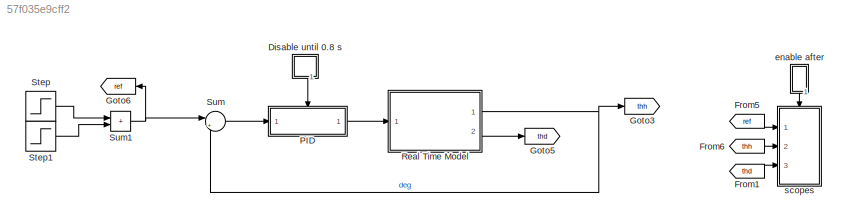
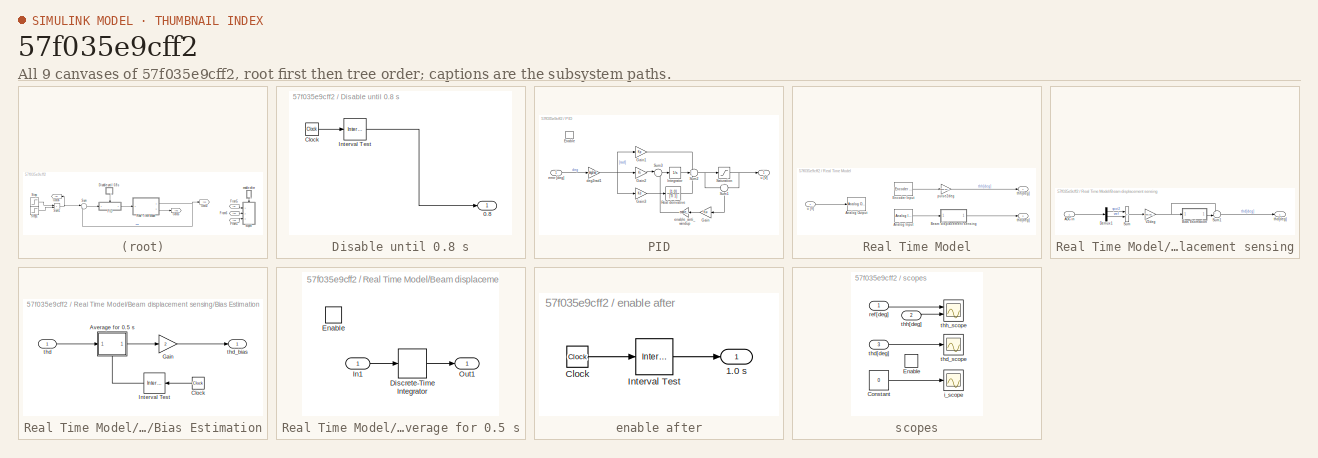
[diagram: thumbnail index - all 9 canvases of the model, root first then tree order]
MODEL slx_57f035e9cff2
KIND model
CONFIG AbsTol = auto
CONFIG EnableMultiTasking = off
CONFIG FixedStep = 0.001
CONFIG MaxStep = auto
CONFIG MinStep = auto
CONFIG RelTol = 1e-3
CONFIG SampleTimeConstraint = Unconstrained
CONFIG SolverName = ode3
CONFIG StartTime = 0.0
CONFIG StopTime = 5
BLOCK [SubSystem] Disable until 0.8 s
  NameLocation = left
  Ports = [0, 1]
  RequestExecContextInheritance = off
BLOCK [Outport] Disable until 0.8 s/0.8
BLOCK [Clock] Disable until 0.8 s/Clock
BLOCK [Reference] Disable until 0.8 s/Interval Test  REF=simulink/Logic and Bit
Operations/Interval Test
  Ports = [1, 1]
  SourceBlock = simulink/Logic and Bit\nOperations/Interval Test
  SourceProductBaseCode = SL
  SourceType = Interval Test
BLOCK [From] From1
  GotoTag = thd
BLOCK [From] From5
  GotoTag = ref
BLOCK [From] From6
  GotoTag = thh
BLOCK [Goto] Goto3
  GotoTag = thh
BLOCK [Goto] Goto5
  GotoTag = thd
BLOCK [Goto] Goto6
  GotoTag = ref
  NameLocation = top
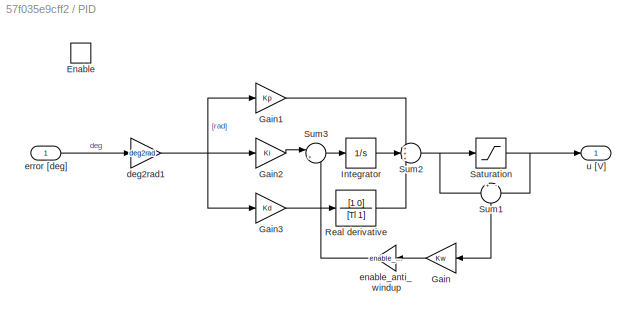
BLOCK [SubSystem] PID
  Ports = [1, 1, 1]
  RequestExecContextInheritance = off
BLOCK [EnablePort] PID/Enable
  Ports = []
BLOCK [Gain] PID/Gain
  Gain = Kw
  NameLocation = top
BLOCK [Gain] PID/Gain1
  Gain = Kp
BLOCK [Gain] PID/Gain2
  Gain = Ki
BLOCK [Gain] PID/Gain3
  Gain = Kd
BLOCK [Integrator] PID/Integrator
  Ports = [1, 1]
BLOCK [TransferFcn] PID/Real derivative
  Denominator = [Tl 1]
  Numerator = [1 0]
BLOCK [Saturate] PID/Saturation
  LinearizeAsGain = off
  LowerLimit = -drv.outmax
  UpperLimit = drv.outmax
BLOCK [Sum] PID/Sum1
  Inputs = +|-
  NameLocation = left
  Ports = [2, 1]
BLOCK [Sum] PID/Sum2
  Inputs = +++
  Ports = [3, 1]
BLOCK [Sum] PID/Sum3
  Inputs = |+-
  Ports = [2, 1]
BLOCK [Gain] PID/deg2rad1
  Gain = deg2rad
BLOCK [Gain] PID/enable_anti_windup
  Gain = enable_anti_windup
BLOCK [Inport] PID/error [deg]
BLOCK [Outport] PID/u [V]
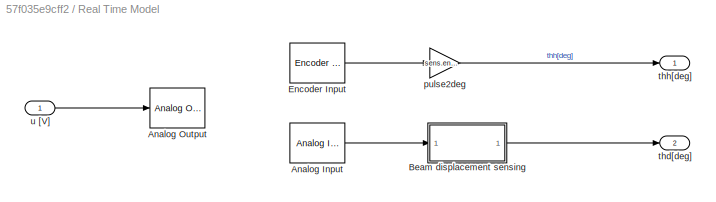
BLOCK [SubSystem] Real Time Model
  Ports = [1, 2]
  RequestExecContextInheritance = off
BLOCK [Reference] Real Time Model/Analog Input  REF=sldrtlib/Analog Input
  AttributesFormatString = National Instruments\nPCI-6221 [auto]
  Ports = [0, 1]
  SourceBlock = sldrtlib/Analog Input
  SourceProductBaseCode = WT
  SourceType = Simulink Desktop Real-Time Analog Input
BLOCK [Reference] Real Time Model/Analog Output  REF=sldrtlib/Analog Output
  AttributesFormatString = National Instruments\nPCI-6221 [auto]
  Ports = [1]
  SourceBlock = sldrtlib/Analog Output
  SourceProductBaseCode = WT
  SourceType = Simulink Desktop Real-Time Analog Output
BLOCK [SubSystem] Real Time Model/Beam displacement sensing
  Ports = [1, 1]
  RequestExecContextInheritance = off
BLOCK [Inport] Real Time Model/Beam displacement sensing/ADC in
BLOCK [SubSystem] Real Time Model/Beam displacement sensing/Bias Estimation
  Ports = [1, 1]
  RequestExecContextInheritance = off
BLOCK [SubSystem] Real Time Model/Beam displacement sensing/Bias Estimation/Average for 0.5 s
  NameLocation = top
  Ports = [1, 1, 1]
  RequestExecContextInheritance = off
BLOCK [DiscreteIntegrator] Real Time Model/Beam displacement sensing/Bias Estimation/Average for 0.5 s/Discrete-Time Integrator
  ICPrevOutput = DiscIntNeverNeededParam
  ICPrevScaledInput = DiscIntNeverNeededParam
  InitialConditionSetting = Auto
  Ports = [1, 1]
  SampleTime = Ts
BLOCK [EnablePort] Real Time Model/Beam displacement sensing/Bias Estimation/Average for 0.5 s/Enable
  Ports = []
BLOCK [Inport] Real Time Model/Beam displacement sensing/Bias Estimation/Average for 0.5 s/In1
BLOCK [Outport] Real Time Model/Beam displacement sensing/Bias Estimation/Average for 0.5 s/Out1
BLOCK [Clock] Real Time Model/Beam displacement sensing/Bias Estimation/Clock
  NameLocation = top
BLOCK [Gain] Real Time Model/Beam displacement sensing/Bias Estimation/Gain
  Gain = 2
BLOCK [Reference] Real Time Model/Beam displacement sensing/Bias Estimation/Interval Test  REF=simulink/Logic and Bit
Operations/Interval Test
  NameLocation = top
  Ports = [1, 1]
  SourceBlock = simulink/Logic and Bit\nOperations/Interval Test
  SourceProductBaseCode = SL
  SourceType = Interval Test
BLOCK [Inport] Real Time Model/Beam displacement sensing/Bias Estimation/thd
BLOCK [Outport] Real Time Model/Beam displacement sensing/Bias Estimation/thd_bias
BLOCK [Demux] Real Time Model/Beam displacement sensing/Demux1
  Outputs = 2
  Ports = [1, 2]
BLOCK [Sum] Real Time Model/Beam displacement sensing/Sum
  IconShape = rectangular
  Inputs = +-
  Ports = [2, 1]
BLOCK [Sum] Real Time Model/Beam displacement sensing/Sum1
  Inputs = +-|
  Ports = [2, 1]
BLOCK [Gain] Real Time Model/Beam displacement sensing/V2deg
  Gain = sens.pot2.V2deg
BLOCK [Outport] Real Time Model/Beam displacement sensing/thd[deg]
BLOCK [Reference] Real Time Model/Encoder Input  REF=sldrtlib/Encoder Input
  AttributesFormatString = National Instruments\nPCI-6221 [auto]
  Ports = [0, 1]
  SourceBlock = sldrtlib/Encoder Input
  SourceProductBaseCode = WT
  SourceType = Simulink Desktop Real-Time Encoder Input
BLOCK [Gain] Real Time Model/pulse2deg
  Gain = sens.enc.pulse2deg
  NameLocation = top
BLOCK [Outport] Real Time Model/thd[deg]
  Port = 2
BLOCK [Outport] Real Time Model/thh[deg]
BLOCK [Inport] Real Time Model/u [V]
BLOCK [Step] Step
  After = step_height
  SampleTime = 0
  Time = step_time
BLOCK [Step] Step1
  After = -step_height
  SampleTime = 0
  Time = step_time+5
BLOCK [Sum] Sum
  Inputs = |+-
  Ports = [2, 1]
BLOCK [Sum] Sum1
  IconShape = rectangular
  Ports = [2, 1]
BLOCK [SubSystem] enable after
  NameLocation = left
  Ports = [0, 1]
  RequestExecContextInheritance = off
BLOCK [Outport] enable after/1.0 s
BLOCK [Clock] enable after/Clock
BLOCK [Reference] enable after/Interval Test  REF=simulink/Logic and Bit
Operations/Interval Test
  Ports = [1, 1]
  SourceBlock = simulink/Logic and Bit\nOperations/Interval Test
  SourceProductBaseCode = SL
  SourceType = Interval Test
BLOCK [SubSystem] scopes
  Ports = [3, 0, 1]
  RequestExecContextInheritance = off
BLOCK [Constant] scopes/Constant
  Value = 0
BLOCK [EnablePort] scopes/Enable
  Ports = []
BLOCK [Scope] scopes/i_scope
  Floating = off
  NumInputPorts = 1
  Ports = [1]
  ScopeSpecificationString = Simulink.scopes.TimeScopeBlockCfg('CurrentConfiguration', extmgr.ConfigurationSet(extmgr.Configuration('Core','General UI',true),extmgr.Configuration('Core','Source UI',true),extmgr.Configuration('Sources','WiredSimulink',true,'DataLoggingVariableName','i_scope1','DataLogging',true,'DataLoggingSaveFormat','StructureWithTime'),extmgr.Configuration('Visuals','Time Domain',true,'SerializedDisplays',{...<+1420ch>
BLOCK [Inport] scopes/ref[deg]
BLOCK [Inport] scopes/thd[deg]
  Port = 3
BLOCK [Scope] scopes/thd_scope
  Floating = off
  NumInputPorts = 1
  Ports = [1]
  ScopeSpecificationString = Simulink.scopes.TimeScopeBlockCfg('CurrentConfiguration', extmgr.ConfigurationSet(extmgr.Configuration('Core','General UI',true),extmgr.Configuration('Core','Source UI',true),extmgr.Configuration('Sources','WiredSimulink',true,'DataLoggingVariableName','thd_scope1','DataLogging',true,'DataLoggingSaveFormat','StructureWithTime'),extmgr.Configuration('Visuals','Time Domain',true,'SerializedDisplays'...<+1450ch>
BLOCK [Inport] scopes/thh[deg]
  Port = 2
BLOCK [Scope] scopes/thh_scope
  Floating = off
  NumInputPorts = 2
  Ports = [2]
  ScopeSpecificationString = Simulink.scopes.TimeScopeBlockCfg('CurrentConfiguration', extmgr.ConfigurationSet(extmgr.Configuration('Core','General UI',true),extmgr.Configuration('Core','Source UI',true),extmgr.Configuration('Sources','WiredSimulink',true,'DataLoggingVariableName','thh_scope1','DataLogging',true,'DataLoggingSaveFormat','StructureWithTime'),extmgr.Configuration('Visuals','Time Domain',true,'SerializedDisplays'...<+1448ch>
LINE Disable until 0.8 s/Clock:1 -> Disable until 0.8 s/Interval Test:1
LINE Disable until 0.8 s/Interval Test:1 -> Disable until 0.8 s/0.8:1
LINE Disable until 0.8 s:1 -> PID:enable
LINE From1:1 -> scopes:3
LINE From5:1 -> scopes:1
LINE From6:1 -> scopes:2
LINE PID/Gain1:1 -> PID/Sum2:1
LINE PID/Gain2:1 -> PID/Sum3:1
LINE PID/Gain3:1 -> PID/Real derivative:1
LINE PID/Gain:1 -> PID/enable_anti_windup:1
LINE PID/Integrator:1 -> PID/Sum2:2
LINE PID/Real derivative:1 -> PID/Sum2:3
NET PID/Saturation:1 -> PID/Sum1:2, PID/u [V]:1
LINE PID/Sum1:1 -> PID/Gain:1
NET PID/Sum2:1 -> PID/Saturation:1, PID/Sum1:1
LINE PID/Sum3:1 -> PID/Integrator:1
NET PID/deg2rad1:1 -> PID/Gain1:1, PID/Gain2:1, PID/Gain3:1
LINE PID/enable_anti_windup:1 -> PID/Sum3:2
LINE PID/error [deg]:1 -> PID/deg2rad1:1
LINE PID:1 -> Real Time Model:1
LINE Real Time Model/Analog Input:1 -> Real Time Model/Beam displacement sensing:1
LINE Real Time Model/Beam displacement sensing/ADC in:1 -> Real Time Model/Beam displacement sensing/Demux1:1
LINE Real Time Model/Beam displacement sensing/Bias Estimation/Average for 0.5 s/Discrete-Time Integrator:1 -> Real Time Model/Beam displacement sensing/Bias Estimation/Average for 0.5 s/Out1:1
LINE Real Time Model/Beam displacement sensing/Bias Estimation/Average for 0.5 s/In1:1 -> Real Time Model/Beam displacement sensing/Bias Estimation/Average for 0.5 s/Discrete-Time Integrator:1
LINE Real Time Model/Beam displacement sensing/Bias Estimation/Average for 0.5 s:1 -> Real Time Model/Beam displacement sensing/Bias Estimation/Gain:1
LINE Real Time Model/Beam displacement sensing/Bias Estimation/Clock:1 -> Real Time Model/Beam displacement sensing/Bias Estimation/Interval Test:1
LINE Real Time Model/Beam displacement sensing/Bias Estimation/Gain:1 -> Real Time Model/Beam displacement sensing/Bias Estimation/thd_bias:1
LINE Real Time Model/Beam displacement sensing/Bias Estimation/Interval Test:1 -> Real Time Model/Beam displacement sensing/Bias Estimation/Average for 0.5 s:enable
LINE Real Time Model/Beam displacement sensing/Bias Estimation/thd:1 -> Real Time Model/Beam displacement sensing/Bias Estimation/Average for 0.5 s:1
LINE Real Time Model/Beam displacement sensing/Bias Estimation:1 -> Real Time Model/Beam displacement sensing/Sum1:2
LINE Real Time Model/Beam displacement sensing/Demux1:1 -> Real Time Model/Beam displacement sensing/Sum:1
LINE Real Time Model/Beam displacement sensing/Demux1:2 -> Real Time Model/Beam displacement sensing/Sum:2
LINE Real Time Model/Beam displacement sensing/Sum1:1 -> Real Time Model/Beam displacement sensing/thd[deg]:1
LINE Real Time Model/Beam displacement sensing/Sum:1 -> Real Time Model/Beam displacement sensing/V2deg:1
NET Real Time Model/Beam displacement sensing/V2deg:1 -> Real Time Model/Beam displacement sensing/Bias Estimation:1, Real Time Model/Beam displacement sensing/Sum1:1
LINE Real Time Model/Beam displacement sensing:1 -> Real Time Model/thd[deg]:1
LINE Real Time Model/Encoder Input:1 -> Real Time Model/pulse2deg:1
LINE Real Time Model/pulse2deg:1 -> Real Time Model/thh[deg]:1
LINE Real Time Model/u [V]:1 -> Real Time Model/Analog Output:1
NET Real Time Model:1 -> Goto3:1, Sum:2
LINE Real Time Model:2 -> Goto5:1
LINE Step1:1 -> Sum1:2
LINE Step:1 -> Sum1:1
NET Sum1:1 -> Goto6:1, Sum:1
LINE Sum:1 -> PID:1
LINE enable after/Clock:1 -> enable after/Interval Test:1
LINE enable after/Interval Test:1 -> enable after/1.0 s:1
LINE enable after:1 -> scopes:enable
LINE scopes/Constant:1 -> scopes/i_scope:1
LINE scopes/ref[deg]:1 -> scopes/thh_scope:1
LINE scopes/thd[deg]:1 -> scopes/thd_scope:1
LINE scopes/thh[deg]:1 -> scopes/thh_scope:2
note: NET lines group one-source signal fan-out (src -> all destinations, sorted); 1:1 wires keep LINE
